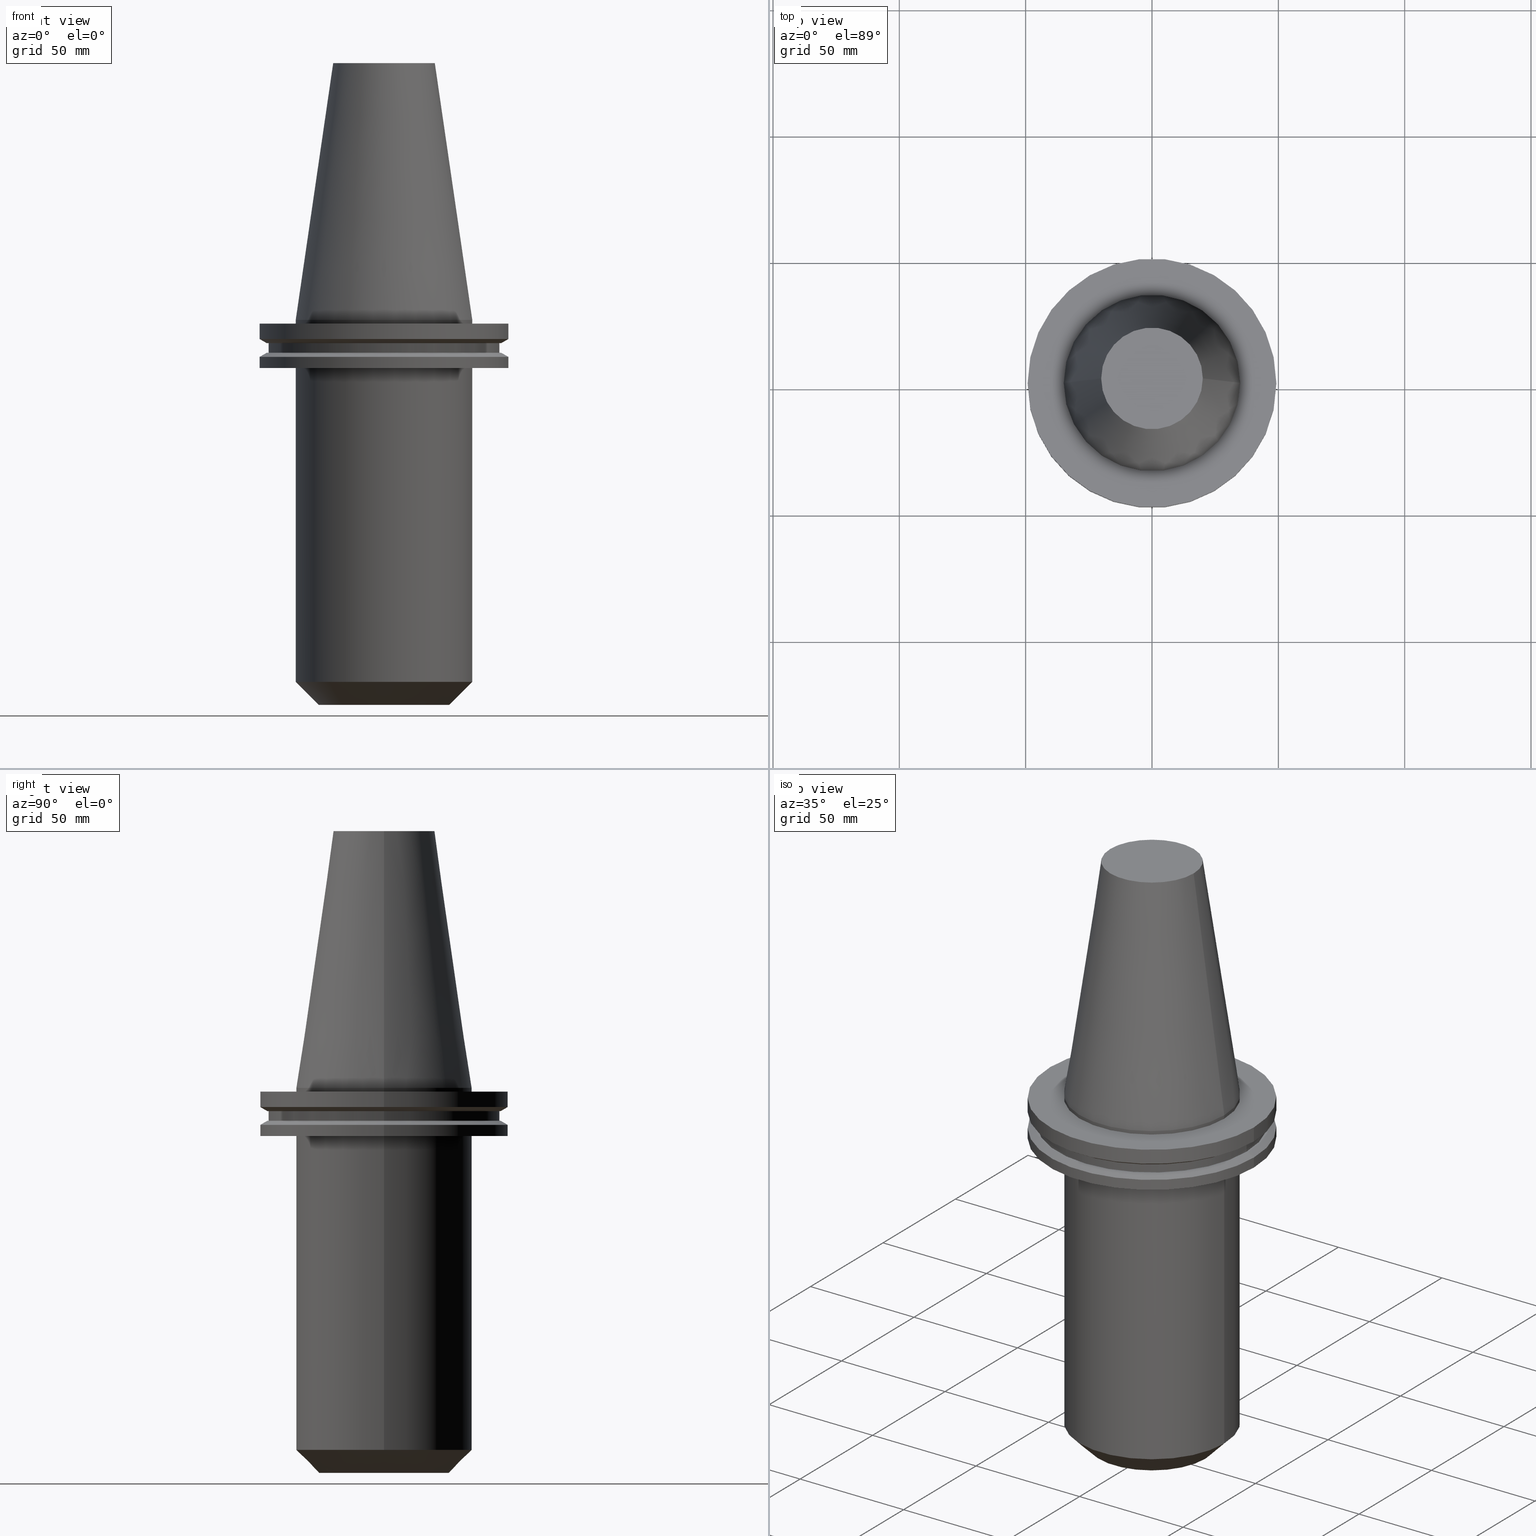
[diagram: canonical four-view strip — front | top / right | iso, engineering-drawing reading convention]
A machine part, canonical four-view strip (front | top / right | iso — engineering-drawing reading convention). The complete STEP part file that produces these views, byte-faithful:
ISO-10303-21;
HEADER;
FILE_DESCRIPTION (( 'STEP AP203' ),
    '1' );
FILE_NAME ('BCV50-EM1_250-6.stp',
    '2022-03-03T16:47:30',
    ( '' ),
    ( '' ),
    'SwSTEP 2.0',
    'SolidWorks 2021',
    '' );
FILE_SCHEMA (( 'CONFIG_CONTROL_DESIGN' ));
ENDSEC;

DATA;
#1 = CARTESIAN_POINT ( 'NONE',  ( 0.000000000000000000, 0.000000000000000000, 101.5999999999999943 ) ) ;
#2 = ORIENTED_EDGE ( 'NONE', *, *, #21, .T. ) ;
#3 = AXIS2_PLACEMENT_3D ( 'NONE', #120, #516, #404 ) ;
#4 = CARTESIAN_POINT ( 'NONE',  ( 25.82499999999999218, 0.000000000000000000, -152.4000000000000057 ) ) ;
#5 = EDGE_LOOP ( 'NONE', ( #102, #155, #376, #27 ) ) ;
#6 = EDGE_CURVE ( 'NONE', #570, #194, #330, .T. ) ;
#7 = DIRECTION ( 'NONE',  ( 0.000000000000000000, 0.000000000000000000, -1.000000000000000000 ) ) ;
#8 = AXIS2_PLACEMENT_3D ( 'NONE', #464, #575, #22 ) ;
#9 = ORIENTED_EDGE ( 'NONE', *, *, #470, .F. ) ;
#10 = DIRECTION ( 'NONE',  ( -0.000000000000000000, -0.000000000000000000, 1.000000000000000000 ) ) ;
#11 = ADVANCED_FACE ( 'NONE', ( #550 ), #421, .T. ) ;
#12 = ORIENTED_EDGE ( 'NONE', *, *, #442, .T. ) ;
#13 = AXIS2_PLACEMENT_3D ( 'NONE', #203, #569, #691 ) ;
#14 = FACE_BOUND ( 'NONE', #510, .T. ) ;
#15 = CARTESIAN_POINT ( 'NONE',  ( 34.92499999999999005, 0.000000000000000000, 101.5999999999999943 ) ) ;
#16 = ORIENTED_EDGE ( 'NONE', *, *, #390, .T. ) ;
#17 = CYLINDRICAL_SURFACE ( 'NONE', #236, 15.87499999999999289 ) ;
#18 = EDGE_CURVE ( 'NONE', #765, #372, #161, .T. ) ;
#19 = CARTESIAN_POINT ( 'NONE',  ( 0.000000000000000000, 0.000000000000000000, 101.5999999999999801 ) ) ;
#20 = DIRECTION ( 'NONE',  ( 1.000000000000000000, 0.000000000000000000, 0.000000000000000000 ) ) ;
#21 = EDGE_CURVE ( 'NONE', #620, #563, #518, .T. ) ;
#22 = DIRECTION ( 'NONE',  ( -1.000000000000000000, 0.000000000000000000, 0.000000000000000000 ) ) ;
#23 = AXIS2_PLACEMENT_3D ( 'NONE', #151, #750, #273 ) ;
#24 = DIRECTION ( 'NONE',  ( -0.000000000000000000, -0.000000000000000000, 1.000000000000000000 ) ) ;
#25 = FACE_OUTER_BOUND ( 'NONE', #266, .T. ) ;
#26 = CARTESIAN_POINT ( 'NONE',  ( 0.000000000000000000, 0.000000000000000000, 0.000000000000000000 ) ) ;
#27 = ORIENTED_EDGE ( 'NONE', *, *, #138, .F. ) ;
#28 = DIRECTION ( 'NONE',  ( 1.000000000000000000, 0.000000000000000000, 0.000000000000000000 ) ) ;
#29 = CARTESIAN_POINT ( 'NONE',  ( 0.000000000000000000, 0.000000000000000000, -7.602389855251287187 ) ) ;
#30 = EDGE_LOOP ( 'NONE', ( #170, #48, #669, #258 ) ) ;
#31 = PERSON_AND_ORGANIZATION ( #132, #53 ) ;
#32 = CYLINDRICAL_SURFACE ( 'NONE', #128, 15.87499999999999289 ) ;
#33 = ADVANCED_FACE ( 'NONE', ( #608 ), #554, .T. ) ;
#34 = VECTOR ( 'NONE', #24, 1000.000000000000000 ) ;
#35 = APPROVAL_DATE_TIME ( #345, #306 ) ;
#36 = ORIENTED_EDGE ( 'NONE', *, *, #21, .F. ) ;
#37 = DIRECTION ( 'NONE',  ( -0.8660254037844273833, 1.060575238724893110E-16, 0.5000000000000195399 ) ) ;
#38 = CALENDAR_DATE ( 2022, 3, 3 ) ;
#39 = ORIENTED_EDGE ( 'NONE', *, *, #208, .T. ) ;
#40 = DIRECTION ( 'NONE',  ( 1.000000000000000000, 0.000000000000000000, 0.000000000000000000 ) ) ;
#41 = PERSON_AND_ORGANIZATION ( #132, #53 ) ;
#42 = ORIENTED_EDGE ( 'NONE', *, *, #457, .F. ) ;
#43 = FACE_BOUND ( 'NONE', #566, .T. ) ;
#44 = VECTOR ( 'NONE', #325, 1000.000000000000114 ) ;
#45 = AXIS2_PLACEMENT_3D ( 'NONE', #576, #459, #409 ) ;
#46 = CIRCLE ( 'NONE', #562, 34.92500000000000426 ) ;
#47 = COORDINATED_UNIVERSAL_TIME_OFFSET ( 6, 0, .BEHIND. ) ;
#48 = ORIENTED_EDGE ( 'NONE', *, *, #315, .T. ) ;
#49 = DIRECTION ( 'NONE',  ( -0.000000000000000000, -0.000000000000000000, 1.000000000000000000 ) ) ;
#50 = EDGE_LOOP ( 'NONE', ( #497, #377, #489, #109 ) ) ;
#51 = ORIENTED_EDGE ( 'NONE', *, *, #18, .F. ) ;
#52 = CYLINDRICAL_SURFACE ( 'NONE', #331, 49.21499999999998920 ) ;
#53 = ORGANIZATION ( 'UNSPECIFIED', 'UNSPECIFIED', '' ) ;
#54 = CARTESIAN_POINT ( 'NONE',  ( 0.000000000000000000, 0.000000000000000000, -13.05499999999999794 ) ) ;
#55 = EDGE_CURVE ( 'NONE', #412, #425, #176, .T. ) ;
#56 = EDGE_LOOP ( 'NONE', ( #301, #131, #113, #688 ) ) ;
#57 = DIRECTION ( 'NONE',  ( -0.000000000000000000, -0.000000000000000000, 1.000000000000000000 ) ) ;
#58 = DIRECTION ( 'NONE',  ( 1.000000000000000000, 0.000000000000000000, 0.000000000000000000 ) ) ;
#59 = AXIS2_PLACEMENT_3D ( 'NONE', #54, #116, #246 ) ;
#60 = ORIENTED_EDGE ( 'NONE', *, *, #55, .F. ) ;
#61 = AXIS2_PLACEMENT_3D ( 'NONE', #398, #646, #527 ) ;
#62 = CARTESIAN_POINT ( 'NONE',  ( 15.87499999999999289, 0.000000000000000000, 0.000000000000000000 ) ) ;
#63 = LINE ( 'NONE', #141, #466 ) ;
#64 = CC_DESIGN_PERSON_AND_ORGANIZATION_ASSIGNMENT ( #221, #475, ( #741 ) ) ;
#65 = EDGE_LOOP ( 'NONE', ( #501, #326, #623, #289 ) ) ;
#66 = FACE_BOUND ( 'NONE', #617, .T. ) ;
#67 = AXIS2_PLACEMENT_3D ( 'NONE', #681, #133, #385 ) ;
#68 =( GEOMETRIC_REPRESENTATION_CONTEXT ( 3 ) GLOBAL_UNCERTAINTY_ASSIGNED_CONTEXT ( ( #375 ) ) GLOBAL_UNIT_ASSIGNED_CONTEXT ( ( #225, #648, #704 ) ) REPRESENTATION_CONTEXT ( 'NONE', 'WORKASPACE' ) );
#69 = DIRECTION ( 'NONE',  ( 0.8660254037844273833, 0.000000000000000000, 0.5000000000000195399 ) ) ;
#70 = EDGE_LOOP ( 'NONE', ( #39, #206, #422, #606 ) ) ;
#71 = CARTESIAN_POINT ( 'NONE',  ( 0.000000000000000000, 0.000000000000000000, -19.04999999999999716 ) ) ;
#72 = LINE ( 'NONE', #15, #721 ) ;
#73 = ORIENTED_EDGE ( 'NONE', *, *, #631, .T. ) ;
#74 = CARTESIAN_POINT ( 'NONE',  ( 0.000000000000000000, 0.000000000000000000, -14.65761014474876944 ) ) ;
#75 = CIRCLE ( 'NONE', #678, 15.87500000000000355 ) ;
#76 = CARTESIAN_POINT ( 'NONE',  ( 0.000000000000000000, 0.000000000000000000, -1.499999999999987566 ) ) ;
#77 = APPROVAL ( #535, 'UNSPECIFIED' ) ;
#78 = DIRECTION ( 'NONE',  ( -0.000000000000000000, -0.000000000000000000, 1.000000000000000000 ) ) ;
#79 = LINE ( 'NONE', #632, #482 ) ;
#80 = AXIS2_PLACEMENT_3D ( 'NONE', #1, #496, #479 ) ;
#81 = CIRCLE ( 'NONE', #295, 15.87499999999999289 ) ;
#82 = CARTESIAN_POINT ( 'NONE',  ( 0.000000000000000000, 0.000000000000000000, -9.204999999999991189 ) ) ;
#83 = EDGE_CURVE ( 'NONE', #440, #247, #675, .T. ) ;
#84 = ORIENTED_EDGE ( 'NONE', *, *, #138, .T. ) ;
#85 = FACE_BOUND ( 'NONE', #738, .T. ) ;
#86 = CYLINDRICAL_SURFACE ( 'NONE', #568, 34.92499999999999716 ) ;
#87 = CC_DESIGN_APPROVAL ( #77, ( #374 ) ) ;
#88 = AXIS2_PLACEMENT_3D ( 'NONE', #19, #585, #515 ) ;
#89 = FACE_OUTER_BOUND ( 'NONE', #70, .T. ) ;
#90 = LINE ( 'NONE', #465, #626 ) ;
#91 = EDGE_CURVE ( 'NONE', #443, #661, #63, .T. ) ;
#92 = APPLICATION_PROTOCOL_DEFINITION ( 'international standard', 'config_control_design', 1994, #111 ) ;
#93 = ORIENTED_EDGE ( 'NONE', *, *, #560, .T. ) ;
#94 = CARTESIAN_POINT ( 'NONE',  ( -49.21499999999998920, 6.027099222003697037E-15, 101.5999999999999943 ) ) ;
#95 = AXIS2_PLACEMENT_3D ( 'NONE', #370, #355, #303 ) ;
#96 = FACE_OUTER_BOUND ( 'NONE', #251, .T. ) ;
#97 = CIRCLE ( 'NONE', #602, 15.87500000000000355 ) ;
#98 = EDGE_CURVE ( 'NONE', #361, #620, #316, .T. ) ;
#99 = DIRECTION ( 'NONE',  ( 1.000000000000000000, 0.000000000000000000, 0.000000000000000000 ) ) ;
#100 = ORIENTED_EDGE ( 'NONE', *, *, #555, .T. ) ;
#101 = CARTESIAN_POINT ( 'NONE',  ( 49.21500000000000341, 0.000000000000000000, -7.602389855251287187 ) ) ;
#102 = ORIENTED_EDGE ( 'NONE', *, *, #408, .F. ) ;
#103 = CIRCLE ( 'NONE', #210, 49.21499999999999631 ) ;
#104 = PERSON_AND_ORGANIZATION ( #132, #53 ) ;
#105 = ORIENTED_EDGE ( 'NONE', *, *, #83, .T. ) ;
#106 = CARTESIAN_POINT ( 'NONE',  ( 49.21499999999998920, 0.000000000000000000, 101.5999999999999943 ) ) ;
#107 = VERTEX_POINT ( 'NONE', #734 ) ;
#108 = EDGE_CURVE ( 'NONE', #765, #107, #126, .T. ) ;
#109 = ORIENTED_EDGE ( 'NONE', *, *, #91, .F. ) ;
#110 = DIRECTION ( 'NONE',  ( 0.000000000000000000, 0.000000000000000000, -1.000000000000000000 ) ) ;
#111 = APPLICATION_CONTEXT ( 'configuration controlled 3d designs of mechanical parts and assemblies' ) ;
#112 = CIRCLE ( 'NONE', #281, 49.21499999999998920 ) ;
#113 = ORIENTED_EDGE ( 'NONE', *, *, #91, .T. ) ;
#114 = EDGE_LOOP ( 'NONE', ( #438, #451 ) ) ;
#115 = CYLINDRICAL_SURFACE ( 'NONE', #348, 45.64500000000000313 ) ;
#116 = DIRECTION ( 'NONE',  ( -0.000000000000000000, -0.000000000000000000, 1.000000000000000000 ) ) ;
#117 = ORIENTED_EDGE ( 'NONE', *, *, #406, .F. ) ;
#118 = AXIS2_PLACEMENT_3D ( 'NONE', #624, #7, #441 ) ;
#119 = FACE_OUTER_BOUND ( 'NONE', #307, .T. ) ;
#120 = CARTESIAN_POINT ( 'NONE',  ( 0.000000000000000000, 0.000000000000000000, -152.4000000000000057 ) ) ;
#121 = VERTEX_POINT ( 'NONE', #381 ) ;
#122 = CALENDAR_DATE ( 2022, 3, 3 ) ;
#123 = ORIENTED_EDGE ( 'NONE', *, *, #498, .F. ) ;
#124 = FACE_OUTER_BOUND ( 'NONE', #492, .T. ) ;
#125 = EDGE_CURVE ( 'NONE', #372, #728, #627, .T. ) ;
#126 = LINE ( 'NONE', #130, #44 ) ;
#127 = ORIENTED_EDGE ( 'NONE', *, *, #514, .T. ) ;
#128 = AXIS2_PLACEMENT_3D ( 'NONE', #26, #748, #329 ) ;
#129 = DIRECTION ( 'NONE',  ( 1.000000000000000000, 0.000000000000000000, 0.000000000000000000 ) ) ;
#130 = CARTESIAN_POINT ( 'NONE',  ( -49.21499999999998920, 0.000000000000000000, -14.65761014474876944 ) ) ;
#131 = ORIENTED_EDGE ( 'NONE', *, *, #237, .T. ) ;
#132 = PERSON ( 'UNSPECIFIED', 'UNSPECIFIED', 'UNSPECIFIED', ('UNSPECIFIED'), ('UNSPECIFIED'), ('UNSPECIFIED') ) ;
#133 = DIRECTION ( 'NONE',  ( 0.000000000000000000, 0.000000000000000000, -1.000000000000000000 ) ) ;
#134 = DIRECTION ( 'NONE',  ( -0.000000000000000000, -0.000000000000000000, 1.000000000000000000 ) ) ;
#135 = ORIENTED_EDGE ( 'NONE', *, *, #83, .F. ) ;
#136 = DIRECTION ( 'NONE',  ( 0.7071067811865481278, 0.000000000000000000, 0.7071067811865470176 ) ) ;
#137 = EDGE_CURVE ( 'NONE', #463, #443, #454, .T. ) ;
#138 = EDGE_CURVE ( 'NONE', #107, #728, #112, .T. ) ;
#139 = CARTESIAN_POINT ( 'NONE',  ( 0.000000000000000000, 0.000000000000000000, -13.05499999999999794 ) ) ;
#140 = AXIS2_PLACEMENT_3D ( 'NONE', #157, #414, #268 ) ;
#141 = CARTESIAN_POINT ( 'NONE',  ( 49.21499999999999631, 0.000000000000000000, 101.5999999999999943 ) ) ;
#142 = DIRECTION ( 'NONE',  ( 1.000000000000000000, 0.000000000000000000, 0.000000000000000000 ) ) ;
#143 = CARTESIAN_POINT ( 'NONE',  ( 0.000000000000000000, 0.000000000000000000, -152.4000000000000057 ) ) ;
#144 = CARTESIAN_POINT ( 'NONE',  ( 0.000000000000000000, 0.000000000000000000, -13.05499999999999794 ) ) ;
#145 = CYLINDRICAL_SURFACE ( 'NONE', #526, 34.92499999999999005 ) ;
#146 = EDGE_CURVE ( 'NONE', #605, #570, #72, .T. ) ;
#147 = CC_DESIGN_PERSON_AND_ORGANIZATION_ASSIGNMENT ( #41, #297, ( #741 ) ) ;
#148 = CARTESIAN_POINT ( 'NONE',  ( 15.87499999999999289, 0.000000000000000000, -35.04999999999999716 ) ) ;
#149 = CARTESIAN_POINT ( 'NONE',  ( 34.92499999999999005, 0.000000000000000000, -1.499999999999987566 ) ) ;
#150 = CIRCLE ( 'NONE', #257, 25.82499999999999218 ) ;
#151 = CARTESIAN_POINT ( 'NONE',  ( 0.000000000000000000, 0.000000000000000000, -7.602389855251287187 ) ) ;
#152 = FACE_OUTER_BOUND ( 'NONE', #159, .T. ) ;
#153 = DIRECTION ( 'NONE',  ( -0.7071067811865481278, 8.659560562354940254E-17, 0.7071067811865470176 ) ) ;
#154 = CIRCLE ( 'NONE', #740, 34.92499999999999716 ) ;
#155 = ORIENTED_EDGE ( 'NONE', *, *, #55, .T. ) ;
#156 = EDGE_CURVE ( 'NONE', #121, #580, #512, .T. ) ;
#157 = CARTESIAN_POINT ( 'NONE',  ( 0.000000000000000000, 34.92499999999999716, -35.04999999999999716 ) ) ;
#158 = APPROVAL_STATUS ( 'not_yet_approved' ) ;
#159 = EDGE_LOOP ( 'NONE', ( #583, #649, #172, #666 ) ) ;
#160 = CARTESIAN_POINT ( 'NONE',  ( 46.43919780457007818, 5.857130358318725715E-15, -13.05499999999999794 ) ) ;
#161 = CIRCLE ( 'NONE', #59, 46.43919780457007818 ) ;
#162 = CIRCLE ( 'NONE', #23, 49.21500000000000341 ) ;
#163 = DIRECTION ( 'NONE',  ( -0.000000000000000000, -0.000000000000000000, 1.000000000000000000 ) ) ;
#164 = DATE_AND_TIME ( #38, #263 ) ;
#165 = EDGE_LOOP ( 'NONE', ( #536, #60 ) ) ;
#166 = DIRECTION ( 'NONE',  ( 1.000000000000000000, 0.000000000000000000, 0.000000000000000000 ) ) ;
#167 = CARTESIAN_POINT ( 'NONE',  ( 0.000000000000000000, 0.000000000000000000, -13.05499999999999794 ) ) ;
#168 = ORIENTED_EDGE ( 'NONE', *, *, #125, .F. ) ;
#169 = DATE_AND_TIME ( #707, #314 ) ;
#170 = ORIENTED_EDGE ( 'NONE', *, *, #156, .F. ) ;
#171 = CARTESIAN_POINT ( 'NONE',  ( -34.92500000000000426, 4.277078946022131676E-15, -143.3000000000000114 ) ) ;
#172 = ORIENTED_EDGE ( 'NONE', *, *, #146, .T. ) ;
#173 = APPROVAL_STATUS ( 'not_yet_approved' ) ;
#174 = EDGE_CURVE ( 'NONE', #443, #388, #162, .T. ) ;
#175 = CARTESIAN_POINT ( 'NONE',  ( 0.000000000000000000, 0.000000000000000000, -9.204999999999991189 ) ) ;
#176 = CIRCLE ( 'NONE', #293, 49.21499999999998920 ) ;
#177 = CARTESIAN_POINT ( 'NONE',  ( 0.000000000000000000, 0.000000000000000000, 101.5999999999999943 ) ) ;
#178 = AXIS2_PLACEMENT_3D ( 'NONE', #144, #752, #20 ) ;
#179 = EDGE_LOOP ( 'NONE', ( #643, #93, #447, #36 ) ) ;
#180 = EDGE_CURVE ( 'NONE', #523, #194, #79, .T. ) ;
#181 = DIRECTION ( 'NONE',  ( 1.000000000000000000, 0.000000000000000000, 0.000000000000000000 ) ) ;
#182 = CYLINDRICAL_SURFACE ( 'NONE', #229, 49.21499999999999631 ) ;
#183 = EDGE_LOOP ( 'NONE', ( #773, #212, #254, #300 ) ) ;
#184 = AXIS2_PLACEMENT_3D ( 'NONE', #340, #397, #392 ) ;
#185 = DIRECTION ( 'NONE',  ( -0.000000000000000000, -0.000000000000000000, 1.000000000000000000 ) ) ;
#186 = ADVANCED_FACE ( 'NONE', ( #634 ), #700, .T. ) ;
#187 = DIRECTION ( 'NONE',  ( 1.000000000000000000, 0.000000000000000000, 0.000000000000000000 ) ) ;
#188 = APPROVAL_DATE_TIME ( #505, #656 ) ;
#189 = ORIENTED_EDGE ( 'NONE', *, *, #279, .T. ) ;
#190 = FACE_OUTER_BOUND ( 'NONE', #114, .T. ) ;
#191 = DESIGN_CONTEXT ( 'detailed design', #111, 'design' ) ;
#192 = DIRECTION ( 'NONE',  ( 0.8660254037844169472, 1.060575238724880168E-16, -0.5000000000000375255 ) ) ;
#193 = VECTOR ( 'NONE', #37, 1000.000000000000000 ) ;
#194 = VERTEX_POINT ( 'NONE', #337 ) ;
#195 = AXIS2_PLACEMENT_3D ( 'NONE', #255, #739, #557 ) ;
#196 = DIRECTION ( 'NONE',  ( -0.000000000000000000, -0.000000000000000000, 1.000000000000000000 ) ) ;
#197 = EDGE_LOOP ( 'NONE', ( #483, #189, #746, #658 ) ) ;
#198 = LINE ( 'NONE', #62, #636 ) ;
#199 = CC_DESIGN_SECURITY_CLASSIFICATION ( #453, ( #741 ) ) ;
#200 = CARTESIAN_POINT ( 'NONE',  ( 49.21499999999998920, 6.027099222003697037E-15, -14.65761014474876944 ) ) ;
#201 = CARTESIAN_POINT ( 'NONE',  ( 0.000000000000000000, 0.000000000000000000, -9.204999999999991189 ) ) ;
#202 = DIRECTION ( 'NONE',  ( 1.000000000000000000, 0.000000000000000000, 0.000000000000000000 ) ) ;
#203 = CARTESIAN_POINT ( 'NONE',  ( 0.000000000000000000, 0.000000000000000000, 101.5999999999999801 ) ) ;
#204 = FACE_OUTER_BOUND ( 'NONE', #183, .T. ) ;
#205 = FACE_OUTER_BOUND ( 'NONE', #543, .T. ) ;
#206 = ORIENTED_EDGE ( 'NONE', *, *, #180, .T. ) ;
#207 = CARTESIAN_POINT ( 'NONE',  ( 0.000000000000000000, 0.000000000000000000, -152.4000000000000057 ) ) ;
#208 = EDGE_CURVE ( 'NONE', #605, #523, #616, .T. ) ;
#209 = CC_DESIGN_DATE_AND_TIME_ASSIGNMENT ( #164, #756, ( #374 ) ) ;
#210 = AXIS2_PLACEMENT_3D ( 'NONE', #628, #215, #698 ) ;
#211 = FACE_BOUND ( 'NONE', #415, .T. ) ;
#212 = ORIENTED_EDGE ( 'NONE', *, *, #390, .F. ) ;
#213 = FACE_OUTER_BOUND ( 'NONE', #346, .T. ) ;
#214 = FACE_OUTER_BOUND ( 'NONE', #763, .T. ) ;
#215 = DIRECTION ( 'NONE',  ( -0.000000000000000000, -0.000000000000000000, 1.000000000000000000 ) ) ;
#216 = VECTOR ( 'NONE', #153, 1000.000000000000000 ) ;
#217 = CARTESIAN_POINT ( 'NONE',  ( -25.82499999999999218, 3.162650358798038830E-15, -152.4000000000000057 ) ) ;
#218 = DIRECTION ( 'NONE',  ( -1.000000000000000000, 0.000000000000000000, -0.000000000000000000 ) ) ;
#219 = AXIS2_PLACEMENT_3D ( 'NONE', #701, #524, #743 ) ;
#220 = EDGE_CURVE ( 'NONE', #388, #663, #90, .T. ) ;
#221 = PERSON_AND_ORGANIZATION ( #132, #53 ) ;
#222 = ORIENTED_EDGE ( 'NONE', *, *, #457, .T. ) ;
#223 = DIRECTION ( 'NONE',  ( 1.000000000000000000, 0.000000000000000000, 0.000000000000000000 ) ) ;
#224 = DIRECTION ( 'NONE',  ( -0.000000000000000000, -0.000000000000000000, 1.000000000000000000 ) ) ;
#225 =( LENGTH_UNIT ( ) NAMED_UNIT ( * ) SI_UNIT ( .MILLI., .METRE. ) );
#226 = ORIENTED_EDGE ( 'NONE', *, *, #491, .F. ) ;
#227 = DIRECTION ( 'NONE',  ( -1.000000000000000000, 0.000000000000000000, 0.000000000000000000 ) ) ;
#228 = VECTOR ( 'NONE', #299, 1000.000000000000000 ) ;
#229 = AXIS2_PLACEMENT_3D ( 'NONE', #349, #353, #360 ) ;
#230 = ORIENTED_EDGE ( 'NONE', *, *, #408, .T. ) ;
#231 = DIRECTION ( 'NONE',  ( 0.000000000000000000, 0.000000000000000000, 1.000000000000000000 ) ) ;
#232 = ORIENTED_EDGE ( 'NONE', *, *, #272, .F. ) ;
#233 = DIRECTION ( 'NONE',  ( 0.000000000000000000, -0.000000000000000000, 1.000000000000000000 ) ) ;
#234 = ADVANCED_FACE ( 'NONE', ( #214 ), #271, .T. ) ;
#235 = CARTESIAN_POINT ( 'NONE',  ( 0.000000000000000000, 0.000000000000000000, -9.204999999999991189 ) ) ;
#236 = AXIS2_PLACEMENT_3D ( 'NONE', #468, #267, #407 ) ;
#237 = EDGE_CURVE ( 'NONE', #388, #443, #690, .T. ) ;
#238 = DATE_TIME_ROLE ( 'classification_date' ) ;
#239 = ORIENTED_EDGE ( 'NONE', *, *, #108, .F. ) ;
#240 = AXIS2_PLACEMENT_3D ( 'NONE', #207, #662, #350 ) ;
#241 = DIRECTION ( 'NONE',  ( 1.000000000000000000, 0.000000000000000000, 0.000000000000000000 ) ) ;
#242 = PRODUCT_DEFINITION_SHAPE ( 'NONE', 'NONE',  #374 ) ;
#243 = ORIENTED_EDGE ( 'NONE', *, *, #6, .T. ) ;
#244 = ORIENTED_EDGE ( 'NONE', *, *, #174, .F. ) ;
#245 = DIRECTION ( 'NONE',  ( -0.000000000000000000, -0.000000000000000000, 1.000000000000000000 ) ) ;
#246 = DIRECTION ( 'NONE',  ( 1.000000000000000000, 0.000000000000000000, 0.000000000000000000 ) ) ;
#247 = VERTEX_POINT ( 'NONE', #638 ) ;
#248 = DIRECTION ( 'NONE',  ( 0.000000000000000000, 0.000000000000000000, -1.000000000000000000 ) ) ;
#249 = ADVANCED_FACE ( 'NONE', ( #96 ), #32, .F. ) ;
#250 = ADVANCED_FACE ( 'NONE', ( #469 ), #86, .T. ) ;
#251 = EDGE_LOOP ( 'NONE', ( #487, #291, #368, #226 ) ) ;
#252 = CYLINDRICAL_SURFACE ( 'NONE', #472, 34.92499999999999716 ) ;
#253 = CARTESIAN_POINT ( 'NONE',  ( -34.92499999999999716, 4.277078946022130887E-15, 101.5999999999999943 ) ) ;
#254 = ORIENTED_EDGE ( 'NONE', *, *, #491, .T. ) ;
#255 = CARTESIAN_POINT ( 'NONE',  ( 0.000000000000000000, 46.43919780457007818, -9.204999999999998295 ) ) ;
#256 = VECTOR ( 'NONE', #69, 1000.000000000000000 ) ;
#257 = AXIS2_PLACEMENT_3D ( 'NONE', #685, #10, #614 ) ;
#258 = ORIENTED_EDGE ( 'NONE', *, *, #382, .F. ) ;
#259 = DIRECTION ( 'NONE',  ( 1.000000000000000000, 0.000000000000000000, 0.000000000000000000 ) ) ;
#260 = DIRECTION ( 'NONE',  ( -0.000000000000000000, -0.000000000000000000, 1.000000000000000000 ) ) ;
#261 = ORIENTED_EDGE ( 'NONE', *, *, #382, .T. ) ;
#262 = CARTESIAN_POINT ( 'NONE',  ( -34.92499999999999005, 0.000000000000000000, 0.000000000000000000 ) ) ;
#263 = LOCAL_TIME ( 10, 47, 30.00000000000000000, #47 ) ;
#264 = CIRCLE ( 'NONE', #703, 34.92499999999999005 ) ;
#265 = EDGE_CURVE ( 'NONE', #425, #412, #530, .T. ) ;
#266 = EDGE_LOOP ( 'NONE', ( #610, #42 ) ) ;
#267 = DIRECTION ( 'NONE',  ( -0.000000000000000000, -0.000000000000000000, 1.000000000000000000 ) ) ;
#268 = DIRECTION ( 'NONE',  ( 1.000000000000000000, 0.000000000000000000, 0.000000000000000000 ) ) ;
#269 = ADVANCED_FACE ( 'NONE', ( #211, #699 ), #755, .F. ) ;
#270 = CARTESIAN_POINT ( 'NONE',  ( 45.64500000000000313, 0.000000000000000000, -13.05499999999999794 ) ) ;
#271 = CONICAL_SURFACE ( 'NONE', #467, 46.43919780457007818, 1.047197551196575205 ) ;
#272 = EDGE_CURVE ( 'NONE', #680, #121, #495, .T. ) ;
#273 = DIRECTION ( 'NONE',  ( 1.000000000000000000, 0.000000000000000000, 0.000000000000000000 ) ) ;
#274 = PLANE ( 'NONE',  #219 ) ;
#275 = CARTESIAN_POINT ( 'NONE',  ( 0.000000000000000000, 0.000000000000000000, -19.04999999999999716 ) ) ;
#276 = VERTEX_POINT ( 'NONE', #148 ) ;
#277 = CARTESIAN_POINT ( 'NONE',  ( 15.87500000000000355, 0.000000000000000000, -152.4000000000000057 ) ) ;
#278 = DIRECTION ( 'NONE',  ( -0.000000000000000000, -0.000000000000000000, 1.000000000000000000 ) ) ;
#279 = EDGE_CURVE ( 'NONE', #546, #361, #334, .T. ) ;
#280 = PERSON_AND_ORGANIZATION_ROLE ( 'creator' ) ;
#281 = AXIS2_PLACEMENT_3D ( 'NONE', #565, #134, #387 ) ;
#282 = AXIS2_PLACEMENT_3D ( 'NONE', #604, #772, #202 ) ;
#283 = ADVANCED_FACE ( 'NONE', ( #641 ), #343, .F. ) ;
#284 = DIRECTION ( 'NONE',  ( 0.000000000000000000, 0.000000000000000000, -1.000000000000000000 ) ) ;
#285 = CARTESIAN_POINT ( 'NONE',  ( 0.000000000000000000, 0.000000000000000000, 0.000000000000000000 ) ) ;
#286 = ORIENTED_EDGE ( 'NONE', *, *, #713, .T. ) ;
#287 = FACE_OUTER_BOUND ( 'NONE', #683, .T. ) ;
#288 = ADVANCED_FACE ( 'NONE', ( #205 ), #706, .F. ) ;
#289 = ORIENTED_EDGE ( 'NONE', *, *, #449, .F. ) ;
#290 = PERSON_AND_ORGANIZATION_ROLE ( 'classification_officer' ) ;
#291 = ORIENTED_EDGE ( 'NONE', *, *, #310, .T. ) ;
#292 = DIRECTION ( 'NONE',  ( -0.000000000000000000, -0.000000000000000000, 1.000000000000000000 ) ) ;
#293 = AXIS2_PLACEMENT_3D ( 'NONE', #726, #513, #187 ) ;
#294 = AXIS2_PLACEMENT_3D ( 'NONE', #29, #473, #405 ) ;
#295 = AXIS2_PLACEMENT_3D ( 'NONE', #667, #507, #435 ) ;
#296 = ORIENTED_EDGE ( 'NONE', *, *, #470, .T. ) ;
#297 = PERSON_AND_ORGANIZATION_ROLE ( 'creator' ) ;
#298 = ORIENTED_EDGE ( 'NONE', *, *, #442, .F. ) ;
#299 = DIRECTION ( 'NONE',  ( -0.000000000000000000, -0.000000000000000000, 1.000000000000000000 ) ) ;
#300 = ORIENTED_EDGE ( 'NONE', *, *, #534, .T. ) ;
#301 = ORIENTED_EDGE ( 'NONE', *, *, #220, .F. ) ;
#302 = LINE ( 'NONE', #541, #308 ) ;
#303 = DIRECTION ( 'NONE',  ( 1.000000000000000000, 0.000000000000000000, 0.000000000000000000 ) ) ;
#304 = ORIENTED_EDGE ( 'NONE', *, *, #336, .F. ) ;
#305 = DIRECTION ( 'NONE',  ( 1.000000000000000000, 0.000000000000000000, 0.000000000000000000 ) ) ;
#306 = APPROVAL ( #173, 'UNSPECIFIED' ) ;
#307 = EDGE_LOOP ( 'NONE', ( #304, #317 ) ) ;
#308 = VECTOR ( 'NONE', #592, 999.9999999999998863 ) ;
#309 = ORIENTED_EDGE ( 'NONE', *, *, #478, .F. ) ;
#310 = EDGE_CURVE ( 'NONE', #591, #367, #517, .T. ) ;
#311 = DIRECTION ( 'NONE',  ( 1.000000000000000000, 0.000000000000000000, 0.000000000000000000 ) ) ;
#312 = EDGE_LOOP ( 'NONE', ( #430, #230, #9, #716 ) ) ;
#313 = CARTESIAN_POINT ( 'NONE',  ( -25.82499999999999218, 3.719864652410084858E-15, -152.4000000000000057 ) ) ;
#314 = LOCAL_TIME ( 10, 47, 30.00000000000000000, #542 ) ;
#315 = EDGE_CURVE ( 'NONE', #121, #680, #711, .T. ) ;
#316 = LINE ( 'NONE', #253, #400 ) ;
#317 = ORIENTED_EDGE ( 'NONE', *, *, #555, .F. ) ;
#318 = DIRECTION ( 'NONE',  ( -0.000000000000000000, -0.000000000000000000, 1.000000000000000000 ) ) ;
#319 = AXIS2_PLACEMENT_3D ( 'NONE', #588, #284, #218 ) ;
#320 = ORIENTED_EDGE ( 'NONE', *, *, #733, .F. ) ;
#321 = CARTESIAN_POINT ( 'NONE',  ( 0.000000000000000000, 0.000000000000000000, -9.204999999999991189 ) ) ;
#322 = ADVANCED_FACE ( 'NONE', ( #725 ), #182, .T. ) ;
#323 = CARTESIAN_POINT ( 'NONE',  ( -45.64500000000000313, 5.589900314708094957E-15, -9.204999999999991189 ) ) ;
#324 = CC_DESIGN_DATE_AND_TIME_ASSIGNMENT ( #169, #238, ( #453 ) ) ;
#325 = DIRECTION ( 'NONE',  ( -0.8660254037844169472, 0.000000000000000000, -0.5000000000000375255 ) ) ;
#326 = ORIENTED_EDGE ( 'NONE', *, *, #156, .T. ) ;
#327 = EDGE_CURVE ( 'NONE', #506, #580, #753, .T. ) ;
#328 = CARTESIAN_POINT ( 'NONE',  ( 0.000000000000000000, 0.000000000000000000, 101.5999999999999943 ) ) ;
#329 = DIRECTION ( 'NONE',  ( 1.000000000000000000, 0.000000000000000000, 0.000000000000000000 ) ) ;
#330 = CIRCLE ( 'NONE', #615, 34.92499999999999005 ) ;
#331 = AXIS2_PLACEMENT_3D ( 'NONE', #762, #758, #241 ) ;
#332 = DIRECTION ( 'NONE',  ( -0.000000000000000000, -0.000000000000000000, 1.000000000000000000 ) ) ;
#333 = AXIS2_PLACEMENT_3D ( 'NONE', #724, #248, #499 ) ;
#334 = LINE ( 'NONE', #217, #216 ) ;
#335 = DIRECTION ( 'NONE',  ( -0.1443082272672999988, 0.000000000000000000, -0.9895327864921755756 ) ) ;
#336 = EDGE_CURVE ( 'NONE', #463, #639, #578, .T. ) ;
#337 = CARTESIAN_POINT ( 'NONE',  ( -34.92499999999999005, 0.000000000000000000, 0.000000000000000000 ) ) ;
#338 = AXIS2_PLACEMENT_3D ( 'NONE', #139, #692, #142 ) ;
#339 = ORIENTED_EDGE ( 'NONE', *, *, #315, .F. ) ;
#340 = CARTESIAN_POINT ( 'NONE',  ( 0.000000000000000000, 0.000000000000000000, 101.5999999999999943 ) ) ;
#341 = ADVANCED_FACE ( 'NONE', ( #386 ), #647, .T. ) ;
#342 = EDGE_CURVE ( 'NONE', #591, #599, #75, .T. ) ;
#343 = PLANE ( 'NONE',  #319 ) ;
#344 = EDGE_CURVE ( 'NONE', #425, #728, #548, .T. ) ;
#345 = DATE_AND_TIME ( #597, #682 ) ;
#346 = EDGE_LOOP ( 'NONE', ( #168, #51, #757, #84 ) ) ;
#347 = CARTESIAN_POINT ( 'NONE',  ( -49.21499999999998920, 6.027099222003697037E-15, -19.04999999999999716 ) ) ;
#348 = AXIS2_PLACEMENT_3D ( 'NONE', #553, #705, #418 ) ;
#349 = CARTESIAN_POINT ( 'NONE',  ( 0.000000000000000000, 0.000000000000000000, 101.5999999999999943 ) ) ;
#350 = DIRECTION ( 'NONE',  ( 1.000000000000000000, 0.000000000000000000, 0.000000000000000000 ) ) ;
#351 = ORIENTED_EDGE ( 'NONE', *, *, #727, .T. ) ;
#352 = LINE ( 'NONE', #596, #401 ) ;
#353 = DIRECTION ( 'NONE',  ( -0.000000000000000000, -0.000000000000000000, 1.000000000000000000 ) ) ;
#354 = ADVANCED_FACE ( 'NONE', ( #717 ), #115, .T. ) ;
#355 = DIRECTION ( 'NONE',  ( -0.000000000000000000, -0.000000000000000000, 1.000000000000000000 ) ) ;
#356 = VECTOR ( 'NONE', #335, 999.9999999999998863 ) ;
#357 = APPROVAL_ROLE ( '' ) ;
#358 = VERTEX_POINT ( 'NONE', #369 ) ;
#359 = CARTESIAN_POINT ( 'NONE',  ( 0.000000000000000000, 0.000000000000000000, 0.000000000000000000 ) ) ;
#360 = DIRECTION ( 'NONE',  ( 1.000000000000000000, 0.000000000000000000, 0.000000000000000000 ) ) ;
#361 = VERTEX_POINT ( 'NONE', #171 ) ;
#362 = SECURITY_CLASSIFICATION_LEVEL ( 'unclassified' ) ;
#363 = ORIENTED_EDGE ( 'NONE', *, *, #98, .T. ) ;
#364 = CYLINDRICAL_SURFACE ( 'NONE', #635, 49.21499999999998920 ) ;
#365 = CIRCLE ( 'NONE', #764, 49.21499999999998920 ) ;
#366 = PRODUCT ( 'BCV50-EM1_250-6', 'BCV50-EM1_250-6', '', ( #471 ) ) ;
#367 = VERTEX_POINT ( 'NONE', #431 ) ;
#368 = ORIENTED_EDGE ( 'NONE', *, *, #498, .T. ) ;
#369 = CARTESIAN_POINT ( 'NONE',  ( 25.82499999999999218, 0.000000000000000000, -152.4000000000000057 ) ) ;
#370 = CARTESIAN_POINT ( 'NONE',  ( 0.000000000000000000, 0.000000000000000000, -19.04999999999999716 ) ) ;
#371 = LOCAL_TIME ( 10, 47, 30.00000000000000000, #532 ) ;
#372 = VERTEX_POINT ( 'NONE', #160 ) ;
#373 = CARTESIAN_POINT ( 'NONE',  ( 46.43919780457007818, 0.000000000000000000, -9.204999999999991189 ) ) ;
#374 = PRODUCT_DEFINITION ( 'UNKNOWN', '', #741, #191 ) ;
#375 = UNCERTAINTY_MEASURE_WITH_UNIT (LENGTH_MEASURE( 1.000000000000000082E-05 ), #225, 'distance_accuracy_value', 'NONE');
#376 = ORIENTED_EDGE ( 'NONE', *, *, #344, .T. ) ;
#377 = ORIENTED_EDGE ( 'NONE', *, *, #220, .T. ) ;
#378 = FACE_OUTER_BOUND ( 'NONE', #480, .T. ) ;
#379 = VERTEX_POINT ( 'NONE', #481 ) ;
#380 = DIRECTION ( 'NONE',  ( -0.000000000000000000, -0.000000000000000000, 1.000000000000000000 ) ) ;
#381 = CARTESIAN_POINT ( 'NONE',  ( -45.64500000000000313, 5.589900314708094957E-15, -13.05499999999999794 ) ) ;
#382 = EDGE_CURVE ( 'NONE', #580, #506, #677, .T. ) ;
#383 = ORIENTED_EDGE ( 'NONE', *, *, #279, .F. ) ;
#384 = CIRCLE ( 'NONE', #654, 46.43919780457007818 ) ;
#385 = DIRECTION ( 'NONE',  ( -1.000000000000000000, 0.000000000000000000, -0.000000000000000000 ) ) ;
#386 = FACE_OUTER_BOUND ( 'NONE', #197, .T. ) ;
#387 = DIRECTION ( 'NONE',  ( 1.000000000000000000, 0.000000000000000000, 0.000000000000000000 ) ) ;
#388 = VERTEX_POINT ( 'NONE', #659 ) ;
#389 = FACE_OUTER_BOUND ( 'NONE', #769, .T. ) ;
#390 = EDGE_CURVE ( 'NONE', #599, #591, #97, .T. ) ;
#391 = AXIS2_PLACEMENT_3D ( 'NONE', #529, #702, #462 ) ;
#392 = DIRECTION ( 'NONE',  ( 1.000000000000000000, 0.000000000000000000, 0.000000000000000000 ) ) ;
#393 = ADVANCED_FACE ( 'NONE', ( #538, #43 ), #413, .F. ) ;
#394 = CYLINDRICAL_SURFACE ( 'NONE', #184, 34.92499999999999005 ) ;
#395 = DIRECTION ( 'NONE',  ( -0.000000000000000000, -0.000000000000000000, 1.000000000000000000 ) ) ;
#396 = DIRECTION ( 'NONE',  ( 1.000000000000000000, 0.000000000000000000, 0.000000000000000000 ) ) ;
#397 = DIRECTION ( 'NONE',  ( -0.000000000000000000, -0.000000000000000000, 1.000000000000000000 ) ) ;
#398 = CARTESIAN_POINT ( 'NONE',  ( 0.000000000000000000, 0.000000000000000000, -1.499999999999987566 ) ) ;
#399 = ADVANCED_FACE ( 'NONE', ( #771 ), #52, .T. ) ;
#400 = VECTOR ( 'NONE', #673, 1000.000000000000000 ) ;
#401 = VECTOR ( 'NONE', #766, 1000.000000000000000 ) ;
#402 = LINE ( 'NONE', #262, #356 ) ;
#403 = VECTOR ( 'NONE', #136, 1000.000000000000000 ) ;
#404 = DIRECTION ( 'NONE',  ( 1.000000000000000000, 0.000000000000000000, 0.000000000000000000 ) ) ;
#405 = DIRECTION ( 'NONE',  ( 1.000000000000000000, 0.000000000000000000, 0.000000000000000000 ) ) ;
#406 = EDGE_CURVE ( 'NONE', #247, #570, #302, .T. ) ;
#407 = DIRECTION ( 'NONE',  ( 1.000000000000000000, 0.000000000000000000, 0.000000000000000000 ) ) ;
#408 = EDGE_CURVE ( 'NONE', #412, #107, #476, .T. ) ;
#409 = DIRECTION ( 'NONE',  ( 1.000000000000000000, 0.000000000000000000, 0.000000000000000000 ) ) ;
#410 = CONICAL_SURFACE ( 'NONE', #655, 46.43919780457007818, 1.047197551196575205 ) ;
#411 = APPROVAL_DATE_TIME ( #590, #77 ) ;
#412 = VERTEX_POINT ( 'NONE', #347 ) ;
#413 = PLANE ( 'NONE',  #558 ) ;
#414 = DIRECTION ( 'NONE',  ( 0.000000000000000000, -0.000000000000000000, 1.000000000000000000 ) ) ;
#415 = EDGE_LOOP ( 'NONE', ( #552, #309 ) ) ;
#416 = MANIFOLD_SOLID_BREP ( 'EM', #494 ) ;
#417 = AXIS2_PLACEMENT_3D ( 'NONE', #177, #224, #433 ) ;
#418 = DIRECTION ( 'NONE',  ( 1.000000000000000000, 0.000000000000000000, 0.000000000000000000 ) ) ;
#419 = CONICAL_SURFACE ( 'NONE', #544, 34.92499999999999005, 0.1448138465474119452 ) ;
#420 = ADVANCED_FACE ( 'NONE', ( #287 ), #419, .T. ) ;
#421 = CYLINDRICAL_SURFACE ( 'NONE', #417, 49.21499999999999631 ) ;
#422 = ORIENTED_EDGE ( 'NONE', *, *, #6, .F. ) ;
#423 = DIRECTION ( 'NONE',  ( -0.000000000000000000, -0.000000000000000000, 1.000000000000000000 ) ) ;
#424 = CIRCLE ( 'NONE', #539, 34.92500000000000426 ) ;
#425 = VERTEX_POINT ( 'NONE', #714 ) ;
#426 = CARTESIAN_POINT ( 'NONE',  ( -46.43919780457007818, 5.687161494633754392E-15, -9.204999999999991189 ) ) ;
#427 = DIRECTION ( 'NONE',  ( -0.000000000000000000, -0.000000000000000000, 1.000000000000000000 ) ) ;
#428 = ORIENTED_EDGE ( 'NONE', *, *, #327, .T. ) ;
#429 = APPROVAL_ROLE ( '' ) ;
#430 = ORIENTED_EDGE ( 'NONE', *, *, #265, .T. ) ;
#431 = CARTESIAN_POINT ( 'NONE',  ( -15.87499999999999289, 1.944126793646422449E-15, -35.04999999999999716 ) ) ;
#432 = AXIS2_PLACEMENT_3D ( 'NONE', #235, #427, #660 ) ;
#433 = DIRECTION ( 'NONE',  ( 1.000000000000000000, 0.000000000000000000, 0.000000000000000000 ) ) ;
#434 = ORIENTED_EDGE ( 'NONE', *, *, #502, .T. ) ;
#435 = DIRECTION ( 'NONE',  ( 1.000000000000000000, 0.000000000000000000, 0.000000000000000000 ) ) ;
#436 = ADVANCED_FACE ( 'NONE', ( #653 ), #364, .T. ) ;
#437 = DIRECTION ( 'NONE',  ( -0.000000000000000000, -0.000000000000000000, 1.000000000000000000 ) ) ;
#438 = ORIENTED_EDGE ( 'NONE', *, *, #18, .T. ) ;
#439 = CIRCLE ( 'NONE', #730, 15.87499999999999289 ) ;
#440 = VERTEX_POINT ( 'NONE', #645 ) ;
#441 = DIRECTION ( 'NONE',  ( -1.000000000000000000, 0.000000000000000000, 0.000000000000000000 ) ) ;
#442 = EDGE_CURVE ( 'NONE', #639, #388, #650, .T. ) ;
#443 = VERTEX_POINT ( 'NONE', #101 ) ;
#444 = CARTESIAN_POINT ( 'NONE',  ( 0.000000000000000000, 0.000000000000000000, -1.499999999999987566 ) ) ;
#445 = EDGE_CURVE ( 'NONE', #379, #563, #352, .T. ) ;
#446 = CIRCLE ( 'NONE', #545, 34.92499999999999005 ) ;
#447 = ORIENTED_EDGE ( 'NONE', *, *, #445, .T. ) ;
#448 = PLANE ( 'NONE',  #67 ) ;
#449 = EDGE_CURVE ( 'NONE', #680, #506, #485, .T. ) ;
#450 = CIRCLE ( 'NONE', #88, 20.10819343178871321 ) ;
#451 = ORIENTED_EDGE ( 'NONE', *, *, #759, .T. ) ;
#452 = DIRECTION ( 'NONE',  ( 1.000000000000000000, 0.000000000000000000, 0.000000000000000000 ) ) ;
#453 = SECURITY_CLASSIFICATION ( '', '', #362 ) ;
#454 = LINE ( 'NONE', #619, #256 ) ;
#455 = DIRECTION ( 'NONE',  ( -0.000000000000000000, -0.000000000000000000, 1.000000000000000000 ) ) ;
#456 = AXIS2_PLACEMENT_3D ( 'NONE', #175, #490, #223 ) ;
#457 = EDGE_CURVE ( 'NONE', #546, #358, #150, .T. ) ;
#458 = CARTESIAN_POINT ( 'NONE',  ( 49.21499999999998920, 0.000000000000000000, -14.65761014474876944 ) ) ;
#459 = DIRECTION ( 'NONE',  ( -0.000000000000000000, -0.000000000000000000, 1.000000000000000000 ) ) ;
#460 = CIRCLE ( 'NONE', #500, 49.21499999999999631 ) ;
#461 = LOCAL_TIME ( 10, 47, 30.00000000000000000, #760 ) ;
#462 = DIRECTION ( 'NONE',  ( -1.000000000000000000, 0.000000000000000000, -0.000000000000000000 ) ) ;
#463 = VERTEX_POINT ( 'NONE', #373 ) ;
#464 = CARTESIAN_POINT ( 'NONE',  ( 0.000000000000000000, 0.000000000000000000, -14.65761014474876944 ) ) ;
#465 = CARTESIAN_POINT ( 'NONE',  ( -49.21499999999999631, 6.027099222003697826E-15, 101.5999999999999943 ) ) ;
#466 = VECTOR ( 'NONE', #629, 1000.000000000000000 ) ;
#467 = AXIS2_PLACEMENT_3D ( 'NONE', #82, #522, #396 ) ;
#468 = CARTESIAN_POINT ( 'NONE',  ( 0.000000000000000000, 0.000000000000000000, 0.000000000000000000 ) ) ;
#469 = FACE_OUTER_BOUND ( 'NONE', #179, .T. ) ;
#470 = EDGE_CURVE ( 'NONE', #728, #107, #365, .T. ) ;
#471 = MECHANICAL_CONTEXT ( 'NONE', #640, 'mechanical' ) ;
#472 = AXIS2_PLACEMENT_3D ( 'NONE', #567, #196, #311 ) ;
#473 = DIRECTION ( 'NONE',  ( -0.000000000000000000, -0.000000000000000000, 1.000000000000000000 ) ) ;
#474 = APPROVAL_PERSON_ORGANIZATION ( #754, #77, #768 ) ;
#475 = PERSON_AND_ORGANIZATION_ROLE ( 'design_supplier' ) ;
#476 = LINE ( 'NONE', #94, #744 ) ;
#477 = DIRECTION ( 'NONE',  ( -0.000000000000000000, -0.000000000000000000, 1.000000000000000000 ) ) ;
#478 = EDGE_CURVE ( 'NONE', #523, #605, #446, .T. ) ;
#479 = DIRECTION ( 'NONE',  ( 1.000000000000000000, 0.000000000000000000, 0.000000000000000000 ) ) ;
#480 = EDGE_LOOP ( 'NONE', ( #127, #363, #547, #722 ) ) ;
#481 = CARTESIAN_POINT ( 'NONE',  ( 34.92500000000000426, 0.000000000000000000, -143.3000000000000114 ) ) ;
#482 = VECTOR ( 'NONE', #582, 1000.000000000000000 ) ;
#483 = ORIENTED_EDGE ( 'NONE', *, *, #775, .T. ) ;
#484 = COORDINATED_UNIVERSAL_TIME_OFFSET ( 6, 0, .BEHIND. ) ;
#485 = LINE ( 'NONE', #603, #508 ) ;
#486 = ADVANCED_FACE ( 'NONE', ( #119, #66 ), #561, .F. ) ;
#487 = ORIENTED_EDGE ( 'NONE', *, *, #342, .F. ) ;
#488 = PERSON_AND_ORGANIZATION ( #132, #53 ) ;
#489 = ORIENTED_EDGE ( 'NONE', *, *, #686, .F. ) ;
#490 = DIRECTION ( 'NONE',  ( -0.000000000000000000, -0.000000000000000000, 1.000000000000000000 ) ) ;
#491 = EDGE_CURVE ( 'NONE', #599, #276, #198, .T. ) ;
#492 = EDGE_LOOP ( 'NONE', ( #556, #657, #296, #239 ) ) ;
#493 = CARTESIAN_POINT ( 'NONE',  ( -34.92499999999999005, 4.277078946022130098E-15, -1.499999999999987566 ) ) ;
#494 = CLOSED_SHELL ( 'NONE', ( #249, #341, #621, #11, #234, #354, #504, #399, #537, #420, #531, #283, #250, #393, #436, #679, #574, #33, #486, #737, #322, #269, #593, #186, #644, #723, #288 ) ) ;
#495 = CIRCLE ( 'NONE', #178, 45.64500000000000313 ) ;
#496 = DIRECTION ( 'NONE',  ( -0.000000000000000000, -0.000000000000000000, 1.000000000000000000 ) ) ;
#497 = ORIENTED_EDGE ( 'NONE', *, *, #174, .T. ) ;
#498 = EDGE_CURVE ( 'NONE', #367, #276, #81, .T. ) ;
#499 = DIRECTION ( 'NONE',  ( -1.000000000000000000, 0.000000000000000000, 0.000000000000000000 ) ) ;
#500 = AXIS2_PLACEMENT_3D ( 'NONE', #76, #751, #747 ) ;
#501 = ORIENTED_EDGE ( 'NONE', *, *, #272, .T. ) ;
#502 = EDGE_CURVE ( 'NONE', #358, #379, #736, .T. ) ;
#503 = DIRECTION ( 'NONE',  ( 1.000000000000000000, 0.000000000000000000, 0.000000000000000000 ) ) ;
#504 = ADVANCED_FACE ( 'NONE', ( #124 ), #509, .T. ) ;
#505 = DATE_AND_TIME ( #122, #371 ) ;
#506 = VERTEX_POINT ( 'NONE', #729 ) ;
#507 = DIRECTION ( 'NONE',  ( -0.000000000000000000, -0.000000000000000000, 1.000000000000000000 ) ) ;
#508 = VECTOR ( 'NONE', #49, 1000.000000000000000 ) ;
#509 = CONICAL_SURFACE ( 'NONE', #333, 49.21499999999998920, 1.047197551196554333 ) ;
#510 = EDGE_LOOP ( 'NONE', ( #232, #339 ) ) ;
#511 = CARTESIAN_POINT ( 'NONE',  ( 0.000000000000000000, 0.000000000000000000, -143.3000000000000114 ) ) ;
#512 = LINE ( 'NONE', #687, #34 ) ;
#513 = DIRECTION ( 'NONE',  ( -0.000000000000000000, -0.000000000000000000, 1.000000000000000000 ) ) ;
#514 = EDGE_CURVE ( 'NONE', #379, #361, #46, .T. ) ;
#515 = DIRECTION ( 'NONE',  ( 1.000000000000000000, 0.000000000000000000, 0.000000000000000000 ) ) ;
#516 = DIRECTION ( 'NONE',  ( -0.000000000000000000, -0.000000000000000000, 1.000000000000000000 ) ) ;
#517 = LINE ( 'NONE', #745, #589 ) ;
#518 = CIRCLE ( 'NONE', #95, 34.92499999999999716 ) ;
#519 = AXIS2_PLACEMENT_3D ( 'NONE', #167, #437, #767 ) ;
#520 = CARTESIAN_POINT ( 'NONE',  ( -46.43919780457007818, 0.000000000000000000, -13.05499999999999794 ) ) ;
#521 = DIRECTION ( 'NONE',  ( 1.000000000000000000, 0.000000000000000000, 0.000000000000000000 ) ) ;
#522 = DIRECTION ( 'NONE',  ( -0.000000000000000000, -0.000000000000000000, 1.000000000000000000 ) ) ;
#523 = VERTEX_POINT ( 'NONE', #493 ) ;
#524 = DIRECTION ( 'NONE',  ( 0.000000000000000000, -0.000000000000000000, 1.000000000000000000 ) ) ;
#525 = CC_DESIGN_PERSON_AND_ORGANIZATION_ASSIGNMENT ( #601, #290, ( #453 ) ) ;
#526 = AXIS2_PLACEMENT_3D ( 'NONE', #328, #332, #581 ) ;
#527 = DIRECTION ( 'NONE',  ( 1.000000000000000000, 0.000000000000000000, 0.000000000000000000 ) ) ;
#528 = CARTESIAN_POINT ( 'NONE',  ( -49.21499999999999631, 6.027099222003697826E-15, -1.499999999999987566 ) ) ;
#529 = CARTESIAN_POINT ( 'NONE',  ( 0.000000000000000000, 49.21499999999999631, -1.499999999999992895 ) ) ;
#530 = CIRCLE ( 'NONE', #664, 49.21499999999998920 ) ;
#531 = ADVANCED_FACE ( 'NONE', ( #389 ), #668, .T. ) ;
#532 = COORDINATED_UNIVERSAL_TIME_OFFSET ( 6, 0, .BEHIND. ) ;
#533 = DIRECTION ( 'NONE',  ( -0.000000000000000000, -0.000000000000000000, 1.000000000000000000 ) ) ;
#534 = EDGE_CURVE ( 'NONE', #276, #367, #439, .T. ) ;
#535 = APPROVAL_STATUS ( 'not_yet_approved' ) ;
#536 = ORIENTED_EDGE ( 'NONE', *, *, #265, .F. ) ;
#537 = ADVANCED_FACE ( 'NONE', ( #378 ), #252, .T. ) ;
#538 = FACE_OUTER_BOUND ( 'NONE', #165, .T. ) ;
#539 = AXIS2_PLACEMENT_3D ( 'NONE', #622, #380, #503 ) ;
#540 = ORIENTED_EDGE ( 'NONE', *, *, #534, .F. ) ;
#541 = CARTESIAN_POINT ( 'NONE',  ( 34.92499999999999005, 4.277078946022130098E-15, 0.000000000000000000 ) ) ;
#542 = COORDINATED_UNIVERSAL_TIME_OFFSET ( 6, 0, .BEHIND. ) ;
#543 = EDGE_LOOP ( 'NONE', ( #540, #123 ) ) ;
#544 = AXIS2_PLACEMENT_3D ( 'NONE', #359, #110, #227 ) ;
#545 = AXIS2_PLACEMENT_3D ( 'NONE', #444, #57, #305 ) ;
#546 = VERTEX_POINT ( 'NONE', #313 ) ;
#547 = ORIENTED_EDGE ( 'NONE', *, *, #577, .F. ) ;
#548 = LINE ( 'NONE', #106, #228 ) ;
#549 = CIRCLE ( 'NONE', #338, 46.43919780457007818 ) ;
#550 = FACE_OUTER_BOUND ( 'NONE', #50, .T. ) ;
#551 = CC_DESIGN_APPROVAL ( #656, ( #453 ) ) ;
#552 = ORIENTED_EDGE ( 'NONE', *, *, #208, .F. ) ;
#553 = CARTESIAN_POINT ( 'NONE',  ( 0.000000000000000000, 0.000000000000000000, 101.5999999999999943 ) ) ;
#554 = CYLINDRICAL_SURFACE ( 'NONE', #80, 45.64500000000000313 ) ;
#555 = EDGE_CURVE ( 'NONE', #639, #463, #384, .T. ) ;
#556 = ORIENTED_EDGE ( 'NONE', *, *, #759, .F. ) ;
#557 = DIRECTION ( 'NONE',  ( 1.000000000000000000, 0.000000000000000000, 0.000000000000000000 ) ) ;
#558 = AXIS2_PLACEMENT_3D ( 'NONE', #607, #233, #40 ) ;
#559 = ORIENTED_EDGE ( 'NONE', *, *, #577, .T. ) ;
#560 = EDGE_CURVE ( 'NONE', #361, #379, #424, .T. ) ;
#561 = PLANE ( 'NONE',  #195 ) ;
#562 = AXIS2_PLACEMENT_3D ( 'NONE', #511, #245, #452 ) ;
#563 = VERTEX_POINT ( 'NONE', #564 ) ;
#564 = CARTESIAN_POINT ( 'NONE',  ( 34.92499999999999716, 0.000000000000000000, -19.04999999999999716 ) ) ;
#565 = CARTESIAN_POINT ( 'NONE',  ( 0.000000000000000000, 0.000000000000000000, -14.65761014474876944 ) ) ;
#566 = EDGE_LOOP ( 'NONE', ( #559, #2 ) ) ;
#567 = CARTESIAN_POINT ( 'NONE',  ( 0.000000000000000000, 0.000000000000000000, 101.5999999999999943 ) ) ;
#568 = AXIS2_PLACEMENT_3D ( 'NONE', #587, #278, #693 ) ;
#569 = DIRECTION ( 'NONE',  ( -0.000000000000000000, -0.000000000000000000, 1.000000000000000000 ) ) ;
#570 = VERTEX_POINT ( 'NONE', #732 ) ;
#571 = DIRECTION ( 'NONE',  ( -0.000000000000000000, -0.000000000000000000, 1.000000000000000000 ) ) ;
#572 = CC_DESIGN_PERSON_AND_ORGANIZATION_ASSIGNMENT ( #642, #280, ( #374 ) ) ;
#573 = DIRECTION ( 'NONE',  ( 1.000000000000000000, 0.000000000000000000, 0.000000000000000000 ) ) ;
#574 = ADVANCED_FACE ( 'NONE', ( #14, #190 ), #448, .F. ) ;
#575 = DIRECTION ( 'NONE',  ( 0.000000000000000000, 0.000000000000000000, -1.000000000000000000 ) ) ;
#576 = CARTESIAN_POINT ( 'NONE',  ( 0.000000000000000000, 0.000000000000000000, -152.4000000000000057 ) ) ;
#577 = EDGE_CURVE ( 'NONE', #563, #620, #154, .T. ) ;
#578 = CIRCLE ( 'NONE', #282, 46.43919780457007818 ) ;
#579 = CC_DESIGN_PERSON_AND_ORGANIZATION_ASSIGNMENT ( #31, #594, ( #366 ) ) ;
#580 = VERTEX_POINT ( 'NONE', #323 ) ;
#581 = DIRECTION ( 'NONE',  ( 1.000000000000000000, 0.000000000000000000, 0.000000000000000000 ) ) ;
#582 = DIRECTION ( 'NONE',  ( -0.000000000000000000, -0.000000000000000000, 1.000000000000000000 ) ) ;
#583 = ORIENTED_EDGE ( 'NONE', *, *, #180, .F. ) ;
#584 = APPROVAL_PERSON_ORGANIZATION ( #488, #656, #429 ) ;
#585 = DIRECTION ( 'NONE',  ( -0.000000000000000000, -0.000000000000000000, 1.000000000000000000 ) ) ;
#586 = CIRCLE ( 'NONE', #240, 25.82499999999999218 ) ;
#587 = CARTESIAN_POINT ( 'NONE',  ( 0.000000000000000000, 0.000000000000000000, 101.5999999999999943 ) ) ;
#588 = CARTESIAN_POINT ( 'NONE',  ( 0.000000000000000000, 20.10819343178871321, 101.5999999999999943 ) ) ;
#589 = VECTOR ( 'NONE', #477, 1000.000000000000000 ) ;
#590 = DATE_AND_TIME ( #715, #461 ) ;
#591 = VERTEX_POINT ( 'NONE', #695 ) ;
#592 = DIRECTION ( 'NONE',  ( 0.1443082272672999988, 1.767266086135277066E-17, -0.9895327864921755756 ) ) ;
#593 = ADVANCED_FACE ( 'NONE', ( #152 ), #145, .T. ) ;
#594 = PERSON_AND_ORGANIZATION_ROLE ( 'design_owner' ) ;
#595 = EDGE_LOOP ( 'NONE', ( #383, #222, #434, #761 ) ) ;
#596 = CARTESIAN_POINT ( 'NONE',  ( 34.92499999999999716, 0.000000000000000000, 101.5999999999999943 ) ) ;
#597 = CALENDAR_DATE ( 2022, 3, 3 ) ;
#598 = CARTESIAN_POINT ( 'NONE',  ( 0.000000000000000000, 0.000000000000000000, 101.5999999999999943 ) ) ;
#599 = VERTEX_POINT ( 'NONE', #277 ) ;
#600 = PRODUCT_RELATED_PRODUCT_CATEGORY ( 'detail', '', ( #366 ) ) ;
#601 = PERSON_AND_ORGANIZATION ( #132, #53 ) ;
#602 = AXIS2_PLACEMENT_3D ( 'NONE', #774, #423, #166 ) ;
#603 = CARTESIAN_POINT ( 'NONE',  ( 45.64500000000000313, 0.000000000000000000, 101.5999999999999943 ) ) ;
#604 = CARTESIAN_POINT ( 'NONE',  ( 0.000000000000000000, 0.000000000000000000, -9.204999999999991189 ) ) ;
#605 = VERTEX_POINT ( 'NONE', #149 ) ;
#606 = ORIENTED_EDGE ( 'NONE', *, *, #146, .F. ) ;
#607 = CARTESIAN_POINT ( 'NONE',  ( 0.000000000000000000, 49.21499999999998920, -19.04999999999999716 ) ) ;
#608 = FACE_OUTER_BOUND ( 'NONE', #30, .T. ) ;
#609 = APPROVAL_PERSON_ORGANIZATION ( #104, #306, #357 ) ;
#610 = ORIENTED_EDGE ( 'NONE', *, *, #775, .F. ) ;
#611 = DIRECTION ( 'NONE',  ( 1.000000000000000000, 0.000000000000000000, 0.000000000000000000 ) ) ;
#612 = CARTESIAN_POINT ( 'NONE',  ( 0.000000000000000000, 0.000000000000000000, 0.000000000000000000 ) ) ;
#613 = ORIENTED_EDGE ( 'NONE', *, *, #686, .T. ) ;
#614 = DIRECTION ( 'NONE',  ( 1.000000000000000000, 0.000000000000000000, 0.000000000000000000 ) ) ;
#615 = AXIS2_PLACEMENT_3D ( 'NONE', #612, #163, #58 ) ;
#616 = CIRCLE ( 'NONE', #61, 34.92499999999999005 ) ;
#617 = EDGE_LOOP ( 'NONE', ( #428, #261 ) ) ;
#618 = DIRECTION ( 'NONE',  ( -0.000000000000000000, -0.000000000000000000, 1.000000000000000000 ) ) ;
#619 = CARTESIAN_POINT ( 'NONE',  ( 46.43919780457007818, 0.000000000000000000, -9.204999999999991189 ) ) ;
#620 = VERTEX_POINT ( 'NONE', #630 ) ;
#621 = ADVANCED_FACE ( 'NONE', ( #89 ), #394, .T. ) ;
#622 = CARTESIAN_POINT ( 'NONE',  ( 0.000000000000000000, 0.000000000000000000, -143.3000000000000114 ) ) ;
#623 = ORIENTED_EDGE ( 'NONE', *, *, #327, .F. ) ;
#624 = CARTESIAN_POINT ( 'NONE',  ( 0.000000000000000000, 0.000000000000000000, 0.000000000000000000 ) ) ;
#625 = VECTOR ( 'NONE', #192, 1000.000000000000114 ) ;
#626 = VECTOR ( 'NONE', #533, 1000.000000000000000 ) ;
#627 = LINE ( 'NONE', #200, #625 ) ;
#628 = CARTESIAN_POINT ( 'NONE',  ( 0.000000000000000000, 0.000000000000000000, -1.499999999999987566 ) ) ;
#629 = DIRECTION ( 'NONE',  ( -0.000000000000000000, -0.000000000000000000, 1.000000000000000000 ) ) ;
#630 = CARTESIAN_POINT ( 'NONE',  ( -34.92499999999999716, 4.277078946022130887E-15, -19.04999999999999716 ) ) ;
#631 = EDGE_CURVE ( 'NONE', #194, #570, #264, .T. ) ;
#632 = CARTESIAN_POINT ( 'NONE',  ( -34.92499999999999005, 4.277078946022130098E-15, 101.5999999999999943 ) ) ;
#633 = CARTESIAN_POINT ( 'NONE',  ( -46.43919780457007818, 5.857130358318727293E-15, -9.204999999999991189 ) ) ;
#634 = FACE_OUTER_BOUND ( 'NONE', #595, .T. ) ;
#635 = AXIS2_PLACEMENT_3D ( 'NONE', #598, #709, #720 ) ;
#636 = VECTOR ( 'NONE', #185, 1000.000000000000000 ) ;
#637 = CARTESIAN_POINT ( 'NONE',  ( 0.000000000000000000, 0.000000000000000000, 0.000000000000000000 ) ) ;
#638 = CARTESIAN_POINT ( 'NONE',  ( 20.10819343178871321, 3.369811209154858606E-15, 101.5999999999999801 ) ) ;
#639 = VERTEX_POINT ( 'NONE', #633 ) ;
#640 = APPLICATION_CONTEXT ( 'configuration controlled 3d designs of mechanical parts and assemblies' ) ;
#641 = FACE_OUTER_BOUND ( 'NONE', #697, .T. ) ;
#642 = PERSON_AND_ORGANIZATION ( #132, #53 ) ;
#643 = ORIENTED_EDGE ( 'NONE', *, *, #98, .F. ) ;
#644 = ADVANCED_FACE ( 'NONE', ( #25, #85 ), #274, .F. ) ;
#645 = CARTESIAN_POINT ( 'NONE',  ( -20.10819343178871321, 0.000000000000000000, 101.5999999999999801 ) ) ;
#646 = DIRECTION ( 'NONE',  ( -0.000000000000000000, -0.000000000000000000, 1.000000000000000000 ) ) ;
#647 = CONICAL_SURFACE ( 'NONE', #3, 25.82499999999999218, 0.7853981633974490562 ) ;
#648 =( NAMED_UNIT ( * ) PLANE_ANGLE_UNIT ( ) SI_UNIT ( $, .RADIAN. ) );
#649 = ORIENTED_EDGE ( 'NONE', *, *, #478, .T. ) ;
#650 = LINE ( 'NONE', #426, #193 ) ;
#651 = APPLICATION_PROTOCOL_DEFINITION ( 'international standard', 'config_control_design', 1994, #640 ) ;
#652 = ORIENTED_EDGE ( 'NONE', *, *, #336, .T. ) ;
#653 = FACE_OUTER_BOUND ( 'NONE', #5, .T. ) ;
#654 = AXIS2_PLACEMENT_3D ( 'NONE', #321, #571, #181 ) ;
#655 = AXIS2_PLACEMENT_3D ( 'NONE', #201, #455, #689 ) ;
#656 = APPROVAL ( #158, 'UNSPECIFIED' ) ;
#657 = ORIENTED_EDGE ( 'NONE', *, *, #125, .T. ) ;
#658 = ORIENTED_EDGE ( 'NONE', *, *, #502, .F. ) ;
#659 = CARTESIAN_POINT ( 'NONE',  ( -49.21500000000000341, 6.027099222003699404E-15, -7.602389855251287187 ) ) ;
#660 = DIRECTION ( 'NONE',  ( 1.000000000000000000, 0.000000000000000000, 0.000000000000000000 ) ) ;
#661 = VERTEX_POINT ( 'NONE', #749 ) ;
#662 = DIRECTION ( 'NONE',  ( -0.000000000000000000, -0.000000000000000000, 1.000000000000000000 ) ) ;
#663 = VERTEX_POINT ( 'NONE', #528 ) ;
#664 = AXIS2_PLACEMENT_3D ( 'NONE', #275, #696, #573 ) ;
#665 = ORIENTED_EDGE ( 'NONE', *, *, #237, .F. ) ;
#666 = ORIENTED_EDGE ( 'NONE', *, *, #631, .F. ) ;
#667 = CARTESIAN_POINT ( 'NONE',  ( 0.000000000000000000, 0.000000000000000000, -35.04999999999999716 ) ) ;
#668 = CONICAL_SURFACE ( 'NONE', #118, 34.92499999999999005, 0.1448138465474119452 ) ;
#669 = ORIENTED_EDGE ( 'NONE', *, *, #449, .T. ) ;
#670 = SHAPE_DEFINITION_REPRESENTATION ( #242, #710 ) ;
#671 = ORIENTED_EDGE ( 'NONE', *, *, #137, .F. ) ;
#672 = DIRECTION ( 'NONE',  ( -0.000000000000000000, -0.000000000000000000, 1.000000000000000000 ) ) ;
#673 = DIRECTION ( 'NONE',  ( -0.000000000000000000, -0.000000000000000000, 1.000000000000000000 ) ) ;
#674 = ORIENTED_EDGE ( 'NONE', *, *, #406, .T. ) ;
#675 = CIRCLE ( 'NONE', #13, 20.10819343178871321 ) ;
#676 = CARTESIAN_POINT ( 'NONE',  ( 0.000000000000000000, 0.000000000000000000, -35.04999999999999716 ) ) ;
#677 = CIRCLE ( 'NONE', #456, 45.64500000000000313 ) ;
#678 = AXIS2_PLACEMENT_3D ( 'NONE', #143, #395, #521 ) ;
#679 = ADVANCED_FACE ( 'NONE', ( #213 ), #694, .T. ) ;
#680 = VERTEX_POINT ( 'NONE', #270 ) ;
#681 = CARTESIAN_POINT ( 'NONE',  ( 0.000000000000000000, 45.64500000000000313, -13.05499999999999794 ) ) ;
#682 = LOCAL_TIME ( 10, 47, 30.00000000000000000, #484 ) ;
#683 = EDGE_LOOP ( 'NONE', ( #320, #674, #243, #718 ) ) ;
#684 = AXIS2_PLACEMENT_3D ( 'NONE', #285, #231, #99 ) ;
#685 = CARTESIAN_POINT ( 'NONE',  ( 0.000000000000000000, 0.000000000000000000, -152.4000000000000057 ) ) ;
#686 = EDGE_CURVE ( 'NONE', #661, #663, #460, .T. ) ;
#687 = CARTESIAN_POINT ( 'NONE',  ( -45.64500000000000313, 5.589900314708094957E-15, 101.5999999999999943 ) ) ;
#688 = ORIENTED_EDGE ( 'NONE', *, *, #713, .F. ) ;
#689 = DIRECTION ( 'NONE',  ( 1.000000000000000000, 0.000000000000000000, 0.000000000000000000 ) ) ;
#690 = CIRCLE ( 'NONE', #294, 49.21500000000000341 ) ;
#691 = DIRECTION ( 'NONE',  ( 1.000000000000000000, 0.000000000000000000, 0.000000000000000000 ) ) ;
#692 = DIRECTION ( 'NONE',  ( -0.000000000000000000, -0.000000000000000000, 1.000000000000000000 ) ) ;
#693 = DIRECTION ( 'NONE',  ( 1.000000000000000000, 0.000000000000000000, 0.000000000000000000 ) ) ;
#694 = CONICAL_SURFACE ( 'NONE', #8, 49.21499999999998920, 1.047197551196554333 ) ;
#695 = CARTESIAN_POINT ( 'NONE',  ( -15.87500000000000355, 1.944126793646423632E-15, -152.4000000000000057 ) ) ;
#696 = DIRECTION ( 'NONE',  ( -0.000000000000000000, -0.000000000000000000, 1.000000000000000000 ) ) ;
#697 = EDGE_LOOP ( 'NONE', ( #105, #708 ) ) ;
#698 = DIRECTION ( 'NONE',  ( 1.000000000000000000, 0.000000000000000000, 0.000000000000000000 ) ) ;
#699 = FACE_OUTER_BOUND ( 'NONE', #719, .T. ) ;
#700 = CONICAL_SURFACE ( 'NONE', #45, 25.82499999999999218, 0.7853981633974490562 ) ;
#701 = CARTESIAN_POINT ( 'NONE',  ( 0.000000000000000000, 15.87500000000000355, -152.4000000000000057 ) ) ;
#702 = DIRECTION ( 'NONE',  ( 0.000000000000000000, 0.000000000000000000, -1.000000000000000000 ) ) ;
#703 = AXIS2_PLACEMENT_3D ( 'NONE', #637, #78, #28 ) ;
#704 =( NAMED_UNIT ( * ) SI_UNIT ( $, .STERADIAN. ) SOLID_ANGLE_UNIT ( ) );
#705 = DIRECTION ( 'NONE',  ( -0.000000000000000000, -0.000000000000000000, 1.000000000000000000 ) ) ;
#706 = PLANE ( 'NONE',  #140 ) ;
#707 = CALENDAR_DATE ( 2022, 3, 3 ) ;
#708 = ORIENTED_EDGE ( 'NONE', *, *, #733, .T. ) ;
#709 = DIRECTION ( 'NONE',  ( -0.000000000000000000, -0.000000000000000000, 1.000000000000000000 ) ) ;
#710 = ADVANCED_BREP_SHAPE_REPRESENTATION ( 'BCV50-EM1_250-6', ( #416, #684 ), #68 ) ;
#711 = CIRCLE ( 'NONE', #519, 45.64500000000000313 ) ;
#712 = EDGE_LOOP ( 'NONE', ( #298, #100, #735, #665 ) ) ;
#713 = EDGE_CURVE ( 'NONE', #663, #661, #103, .T. ) ;
#714 = CARTESIAN_POINT ( 'NONE',  ( 49.21499999999998920, 0.000000000000000000, -19.04999999999999716 ) ) ;
#715 = CALENDAR_DATE ( 2022, 3, 3 ) ;
#716 = ORIENTED_EDGE ( 'NONE', *, *, #344, .F. ) ;
#717 = FACE_OUTER_BOUND ( 'NONE', #65, .T. ) ;
#718 = ORIENTED_EDGE ( 'NONE', *, *, #727, .F. ) ;
#719 = EDGE_LOOP ( 'NONE', ( #613, #286 ) ) ;
#720 = DIRECTION ( 'NONE',  ( 1.000000000000000000, 0.000000000000000000, 0.000000000000000000 ) ) ;
#721 = VECTOR ( 'NONE', #260, 1000.000000000000000 ) ;
#722 = ORIENTED_EDGE ( 'NONE', *, *, #445, .F. ) ;
#723 = ADVANCED_FACE ( 'NONE', ( #204 ), #17, .F. ) ;
#724 = CARTESIAN_POINT ( 'NONE',  ( 0.000000000000000000, 0.000000000000000000, -14.65761014474876944 ) ) ;
#725 = FACE_OUTER_BOUND ( 'NONE', #56, .T. ) ;
#726 = CARTESIAN_POINT ( 'NONE',  ( 0.000000000000000000, 0.000000000000000000, -19.04999999999999716 ) ) ;
#727 = EDGE_CURVE ( 'NONE', #440, #194, #402, .T. ) ;
#728 = VERTEX_POINT ( 'NONE', #458 ) ;
#729 = CARTESIAN_POINT ( 'NONE',  ( 45.64500000000000313, 0.000000000000000000, -9.204999999999991189 ) ) ;
#730 = AXIS2_PLACEMENT_3D ( 'NONE', #676, #672, #129 ) ;
#731 = ORIENTED_EDGE ( 'NONE', *, *, #342, .T. ) ;
#732 = CARTESIAN_POINT ( 'NONE',  ( 34.92499999999999005, 4.277078946022130098E-15, 0.000000000000000000 ) ) ;
#733 = EDGE_CURVE ( 'NONE', #247, #440, #450, .T. ) ;
#734 = CARTESIAN_POINT ( 'NONE',  ( -49.21499999999998920, 6.027099222003697037E-15, -14.65761014474876944 ) ) ;
#735 = ORIENTED_EDGE ( 'NONE', *, *, #137, .T. ) ;
#736 = LINE ( 'NONE', #4, #403 ) ;
#737 = ADVANCED_FACE ( 'NONE', ( #742 ), #410, .T. ) ;
#738 = EDGE_LOOP ( 'NONE', ( #16, #731 ) ) ;
#739 = DIRECTION ( 'NONE',  ( 0.000000000000000000, -0.000000000000000000, 1.000000000000000000 ) ) ;
#740 = AXIS2_PLACEMENT_3D ( 'NONE', #71, #318, #259 ) ;
#741 = PRODUCT_DEFINITION_FORMATION_WITH_SPECIFIED_SOURCE ( 'ANY', '', #366, .NOT_KNOWN. ) ;
#742 = FACE_OUTER_BOUND ( 'NONE', #712, .T. ) ;
#743 = DIRECTION ( 'NONE',  ( 1.000000000000000000, 0.000000000000000000, 0.000000000000000000 ) ) ;
#744 = VECTOR ( 'NONE', #292, 1000.000000000000000 ) ;
#745 = CARTESIAN_POINT ( 'NONE',  ( -15.87499999999999289, 1.944126793646422449E-15, 0.000000000000000000 ) ) ;
#746 = ORIENTED_EDGE ( 'NONE', *, *, #514, .F. ) ;
#747 = DIRECTION ( 'NONE',  ( 1.000000000000000000, 0.000000000000000000, 0.000000000000000000 ) ) ;
#748 = DIRECTION ( 'NONE',  ( -0.000000000000000000, -0.000000000000000000, 1.000000000000000000 ) ) ;
#749 = CARTESIAN_POINT ( 'NONE',  ( 49.21499999999999631, 0.000000000000000000, -1.499999999999987566 ) ) ;
#750 = DIRECTION ( 'NONE',  ( -0.000000000000000000, -0.000000000000000000, 1.000000000000000000 ) ) ;
#751 = DIRECTION ( 'NONE',  ( -0.000000000000000000, -0.000000000000000000, 1.000000000000000000 ) ) ;
#752 = DIRECTION ( 'NONE',  ( -0.000000000000000000, -0.000000000000000000, 1.000000000000000000 ) ) ;
#753 = CIRCLE ( 'NONE', #432, 45.64500000000000313 ) ;
#754 = PERSON_AND_ORGANIZATION ( #132, #53 ) ;
#755 = PLANE ( 'NONE',  #391 ) ;
#756 = DATE_TIME_ROLE ( 'creation_date' ) ;
#757 = ORIENTED_EDGE ( 'NONE', *, *, #108, .T. ) ;
#758 = DIRECTION ( 'NONE',  ( -0.000000000000000000, -0.000000000000000000, 1.000000000000000000 ) ) ;
#759 = EDGE_CURVE ( 'NONE', #372, #765, #549, .T. ) ;
#760 = COORDINATED_UNIVERSAL_TIME_OFFSET ( 6, 0, .BEHIND. ) ;
#761 = ORIENTED_EDGE ( 'NONE', *, *, #560, .F. ) ;
#762 = CARTESIAN_POINT ( 'NONE',  ( 0.000000000000000000, 0.000000000000000000, 101.5999999999999943 ) ) ;
#763 = EDGE_LOOP ( 'NONE', ( #652, #12, #244, #671 ) ) ;
#764 = AXIS2_PLACEMENT_3D ( 'NONE', #74, #618, #611 ) ;
#765 = VERTEX_POINT ( 'NONE', #520 ) ;
#766 = DIRECTION ( 'NONE',  ( -0.000000000000000000, -0.000000000000000000, 1.000000000000000000 ) ) ;
#767 = DIRECTION ( 'NONE',  ( 1.000000000000000000, 0.000000000000000000, 0.000000000000000000 ) ) ;
#768 = APPROVAL_ROLE ( '' ) ;
#769 = EDGE_LOOP ( 'NONE', ( #117, #135, #351, #73 ) ) ;
#770 = CC_DESIGN_APPROVAL ( #306, ( #741 ) ) ;
#771 = FACE_OUTER_BOUND ( 'NONE', #312, .T. ) ;
#772 = DIRECTION ( 'NONE',  ( -0.000000000000000000, -0.000000000000000000, 1.000000000000000000 ) ) ;
#773 = ORIENTED_EDGE ( 'NONE', *, *, #310, .F. ) ;
#774 = CARTESIAN_POINT ( 'NONE',  ( 0.000000000000000000, 0.000000000000000000, -152.4000000000000057 ) ) ;
#775 = EDGE_CURVE ( 'NONE', #358, #546, #586, .T. ) ;
ENDSEC;
END-ISO-10303-21;
